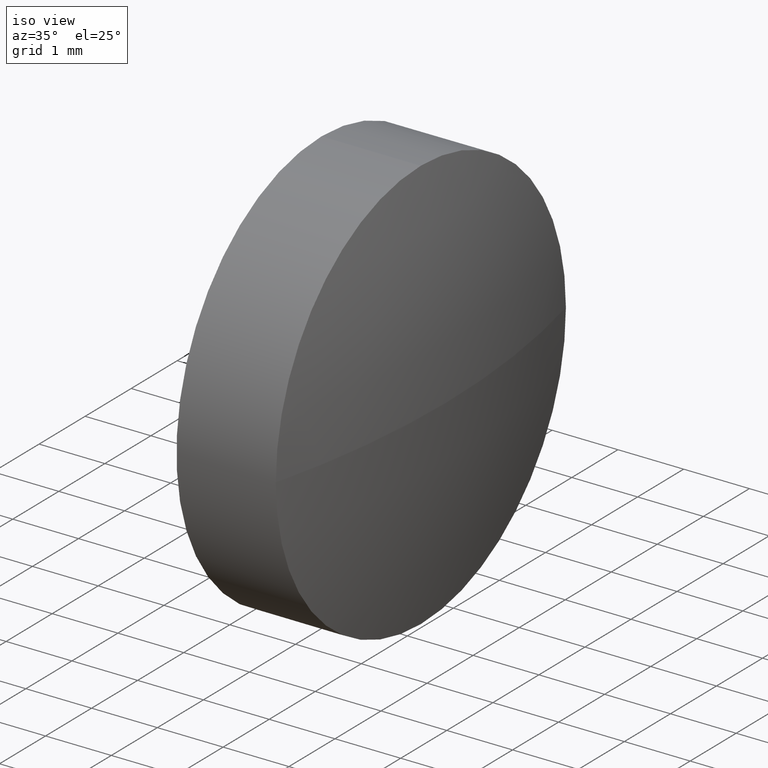
[diagram: clean part render]
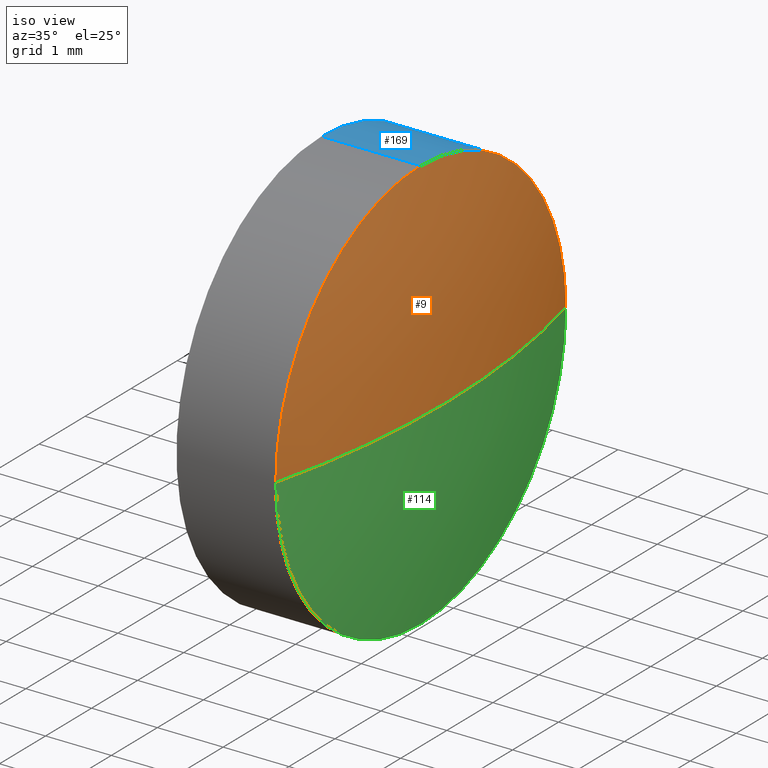
[diagram: same view with three faces highlighted in distinct colors, each labeled with its STEP entity id]
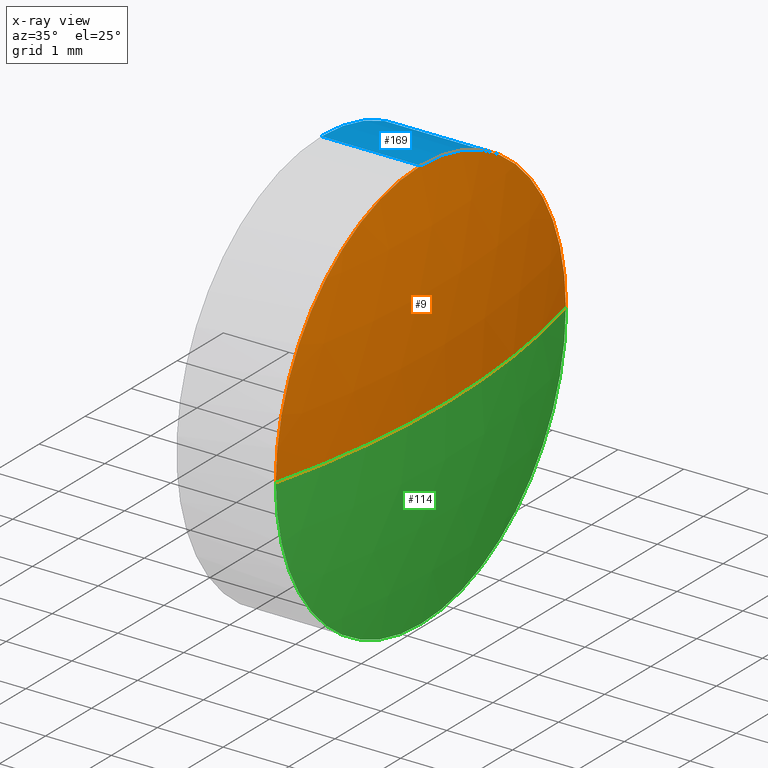
[diagram: x-ray of the same camera — body ghosted, the three highlighted faces saturated]
A machine part, iso view with three faces highlighted in distinct colors.
The next image is the same camera in x-ray (body ghosted, the three faces saturated) — at least one of them is partly hidden behind the body in this view.
Their STEP definitions:

[orange] entity #9 — the highlighted spherical surface has radius 12.9162 mm.
#1 = CARTESIAN_POINT ( 'NONE',  ( 622.5808961781638100, 229.1405012617116500, 0.0000000000000000000 ) ) ;
#2 = ORIENTED_EDGE ( 'NONE', *, *, #12, .F. ) ;
#3 = DIRECTION ( 'NONE',  ( 0.0000000000000000000, 0.0000000000000000000, 1.000000000000000000 ) ) ;
#9 = ADVANCED_FACE ( 'NONE', ( #143 ), #26, .T. ) ;
#11 = ORIENTED_EDGE ( 'NONE', *, *, #166, .F. ) ;
#12 = EDGE_CURVE ( 'NONE', #146, #70, #60, .T. ) ;
#16 = DIRECTION ( 'NONE',  ( 0.0000000000000000000, 0.0000000000000000000, 1.000000000000000000 ) ) ;
#17 = EDGE_CURVE ( 'NONE', #58, #70, #94, .T. ) ;
#18 = DIRECTION ( 'NONE',  ( -1.000000000000000000, -0.0000000000000000000, -0.0000000000000000000 ) ) ;
#26 = SPHERICAL_SURFACE ( 'NONE', #99, 12.91615384615374000 ) ;
#31 = CARTESIAN_POINT ( 'NONE',  ( 622.5808961781638100, 229.1405012617116500, 0.0000000000000000000 ) ) ;
#44 = ORIENTED_EDGE ( 'NONE', *, *, #81, .F. ) ;
#46 = VERTEX_POINT ( 'NONE', #174 ) ;
#51 = CARTESIAN_POINT ( 'NONE',  ( 635.1070500243175700, 229.1405012617116200, 3.149999999999986100 ) ) ;
#53 = DIRECTION ( 'NONE',  ( 0.0000000000000000000, 1.224646799147353200E-016, -1.000000000000000000 ) ) ;
#58 = VERTEX_POINT ( 'NONE', #62 ) ;
#60 = CIRCLE ( 'NONE', #91, 3.149999999999986100 ) ;
#62 = CARTESIAN_POINT ( 'NONE',  ( 635.4970500243175600, 229.1405012617116500, 0.0000000000000000000 ) ) ;
#70 = VERTEX_POINT ( 'NONE', #131 ) ;
#72 = DIRECTION ( 'NONE',  ( -0.0000000000000000000, 0.0000000000000000000, 1.000000000000000000 ) ) ;
#81 = EDGE_CURVE ( 'NONE', #46, #146, #111, .T. ) ;
#87 = CARTESIAN_POINT ( 'NONE',  ( 635.1070500243175700, 229.1405012617116200, 0.0000000000000000000 ) ) ;
#89 = DIRECTION ( 'NONE',  ( 1.000000000000000000, 0.0000000000000000000, 0.0000000000000000000 ) ) ;
#91 = AXIS2_PLACEMENT_3D ( 'NONE', #87, #105, #3 ) ;
#94 = CIRCLE ( 'NONE', #148, 12.91615384615374400 ) ;
#96 = CARTESIAN_POINT ( 'NONE',  ( 622.5808961781638100, 229.1405012617116500, 0.0000000000000000000 ) ) ;
#99 = AXIS2_PLACEMENT_3D ( 'NONE', #1, #172, #171 ) ;
#105 = DIRECTION ( 'NONE',  ( -1.000000000000000000, -0.0000000000000000000, -0.0000000000000000000 ) ) ;
#109 = AXIS2_PLACEMENT_3D ( 'NONE', #96, #53, #179 ) ;
#111 = CIRCLE ( 'NONE', #116, 3.149999999999986100 ) ;
#116 = AXIS2_PLACEMENT_3D ( 'NONE', #154, #18, #16 ) ;
#131 = CARTESIAN_POINT ( 'NONE',  ( 635.1070500243175700, 232.2905012617116300, 0.0000000000000000000 ) ) ;
#143 = FACE_OUTER_BOUND ( 'NONE', #150, .T. ) ;
#146 = VERTEX_POINT ( 'NONE', #51 ) ;
#148 = AXIS2_PLACEMENT_3D ( 'NONE', #31, #72, #89 ) ;
#149 = ORIENTED_EDGE ( 'NONE', *, *, #17, .T. ) ;
#150 = EDGE_LOOP ( 'NONE', ( #11, #149, #2, #44 ) ) ;
#154 = CARTESIAN_POINT ( 'NONE',  ( 635.1070500243175700, 229.1405012617116200, 0.0000000000000000000 ) ) ;
#166 = EDGE_CURVE ( 'NONE', #58, #46, #167, .T. ) ;
#167 = CIRCLE ( 'NONE', #109, 12.91615384615374400 ) ;
#171 = DIRECTION ( 'NONE',  ( 0.0000000000000000000, 1.000000000000000000, 0.0000000000000000000 ) ) ;
#172 = DIRECTION ( 'NONE',  ( -0.0000000000000000000, 0.0000000000000000000, -1.000000000000000000 ) ) ;
#174 = CARTESIAN_POINT ( 'NONE',  ( 635.1070500243175700, 225.9905012617116700, -3.857637417314171600E-016 ) ) ;
#179 = DIRECTION ( 'NONE',  ( 0.0000000000000000000, 1.000000000000000000, 1.224646799147352700E-016 ) ) ;

[blue] entity #169 — the highlighted cylindrical surface (partial cylindrical patch) has radius 3.15 mm, axis along (-1, -0, -0).
#3 = DIRECTION ( 'NONE',  ( 0.0000000000000000000, 0.0000000000000000000, 1.000000000000000000 ) ) ;
#5 = CARTESIAN_POINT ( 'NONE',  ( 611.6004701883784900, 229.1405012617116200, 0.0000000000000000000 ) ) ;
#7 = ORIENTED_EDGE ( 'NONE', *, *, #12, .T. ) ;
#12 = EDGE_CURVE ( 'NONE', #146, #70, #60, .T. ) ;
#24 = LINE ( 'NONE', #41, #126 ) ;
#25 = AXIS2_PLACEMENT_3D ( 'NONE', #5, #90, #106 ) ;
#28 = DIRECTION ( 'NONE',  ( 0.0000000000000000000, 0.0000000000000000000, 1.000000000000000000 ) ) ;
#32 = CARTESIAN_POINT ( 'NONE',  ( 633.5970500243175800, 229.1405012617116200, 0.0000000000000000000 ) ) ;
#35 = EDGE_LOOP ( 'NONE', ( #129, #107, #52, #160, #7 ) ) ;
#38 = CARTESIAN_POINT ( 'NONE',  ( 635.1070500243175700, 229.1405012617116200, -3.149999999999986100 ) ) ;
#40 = EDGE_CURVE ( 'NONE', #104, #64, #92, .T. ) ;
#41 = CARTESIAN_POINT ( 'NONE',  ( 611.6004701883784900, 229.1405012617116200, 3.149999999999986100 ) ) ;
#51 = CARTESIAN_POINT ( 'NONE',  ( 635.1070500243175700, 229.1405012617116200, 3.149999999999986100 ) ) ;
#52 = ORIENTED_EDGE ( 'NONE', *, *, #97, .F. ) ;
#60 = CIRCLE ( 'NONE', #91, 3.149999999999986100 ) ;
#63 = EDGE_CURVE ( 'NONE', #146, #182, #24, .T. ) ;
#64 = VERTEX_POINT ( 'NONE', #155 ) ;
#67 = CYLINDRICAL_SURFACE ( 'NONE', #25, 3.149999999999986100 ) ;
#69 = EDGE_CURVE ( 'NONE', #70, #104, #184, .T. ) ;
#70 = VERTEX_POINT ( 'NONE', #131 ) ;
#77 = AXIS2_PLACEMENT_3D ( 'NONE', #32, #120, #119 ) ;
#86 = CARTESIAN_POINT ( 'NONE',  ( 611.6004701883784900, 229.1405012617116200, -3.149999999999986100 ) ) ;
#87 = CARTESIAN_POINT ( 'NONE',  ( 635.1070500243175700, 229.1405012617116200, 0.0000000000000000000 ) ) ;
#90 = DIRECTION ( 'NONE',  ( -1.000000000000000000, -0.0000000000000000000, -0.0000000000000000000 ) ) ;
#91 = AXIS2_PLACEMENT_3D ( 'NONE', #87, #105, #3 ) ;
#92 = LINE ( 'NONE', #86, #177 ) ;
#97 = EDGE_CURVE ( 'NONE', #182, #64, #145, .T. ) ;
#101 = DIRECTION ( 'NONE',  ( -1.000000000000000000, -0.0000000000000000000, -0.0000000000000000000 ) ) ;
#103 = DIRECTION ( 'NONE',  ( -1.000000000000000000, -0.0000000000000000000, -0.0000000000000000000 ) ) ;
#104 = VERTEX_POINT ( 'NONE', #38 ) ;
#105 = DIRECTION ( 'NONE',  ( -1.000000000000000000, -0.0000000000000000000, -0.0000000000000000000 ) ) ;
#106 = DIRECTION ( 'NONE',  ( 0.0000000000000000000, 0.0000000000000000000, 1.000000000000000000 ) ) ;
#107 = ORIENTED_EDGE ( 'NONE', *, *, #40, .T. ) ;
#113 = AXIS2_PLACEMENT_3D ( 'NONE', #140, #101, #28 ) ;
#119 = DIRECTION ( 'NONE',  ( 0.0000000000000000000, 0.0000000000000000000, 1.000000000000000000 ) ) ;
#120 = DIRECTION ( 'NONE',  ( -1.000000000000000000, -0.0000000000000000000, -0.0000000000000000000 ) ) ;
#126 = VECTOR ( 'NONE', #133, 1000.000000000000000 ) ;
#129 = ORIENTED_EDGE ( 'NONE', *, *, #69, .T. ) ;
#131 = CARTESIAN_POINT ( 'NONE',  ( 635.1070500243175700, 232.2905012617116300, 0.0000000000000000000 ) ) ;
#133 = DIRECTION ( 'NONE',  ( -1.000000000000000000, -0.0000000000000000000, -0.0000000000000000000 ) ) ;
#140 = CARTESIAN_POINT ( 'NONE',  ( 635.1070500243175700, 229.1405012617116200, 0.0000000000000000000 ) ) ;
#145 = CIRCLE ( 'NONE', #77, 3.149999999999986100 ) ;
#146 = VERTEX_POINT ( 'NONE', #51 ) ;
#155 = CARTESIAN_POINT ( 'NONE',  ( 633.5970500243175800, 229.1405012617116200, -3.149999999999986100 ) ) ;
#160 = ORIENTED_EDGE ( 'NONE', *, *, #63, .F. ) ;
#163 = CARTESIAN_POINT ( 'NONE',  ( 633.5970500243175800, 229.1405012617116200, 3.149999999999986100 ) ) ;
#169 = ADVANCED_FACE ( 'NONE', ( #186 ), #67, .T. ) ;
#177 = VECTOR ( 'NONE', #103, 1000.000000000000000 ) ;
#182 = VERTEX_POINT ( 'NONE', #163 ) ;
#184 = CIRCLE ( 'NONE', #113, 3.149999999999986100 ) ;
#186 = FACE_OUTER_BOUND ( 'NONE', #35, .T. ) ;

[green] entity #114 — the highlighted spherical surface has radius 12.9162 mm.
#4 = DIRECTION ( 'NONE',  ( -0.0000000000000000000, 0.0000000000000000000, -1.000000000000000000 ) ) ;
#17 = EDGE_CURVE ( 'NONE', #58, #70, #94, .T. ) ;
#20 = CARTESIAN_POINT ( 'NONE',  ( 635.1070500243175700, 229.1405012617116200, 0.0000000000000000000 ) ) ;
#28 = DIRECTION ( 'NONE',  ( 0.0000000000000000000, 0.0000000000000000000, 1.000000000000000000 ) ) ;
#31 = CARTESIAN_POINT ( 'NONE',  ( 622.5808961781638100, 229.1405012617116500, 0.0000000000000000000 ) ) ;
#38 = CARTESIAN_POINT ( 'NONE',  ( 635.1070500243175700, 229.1405012617116200, -3.149999999999986100 ) ) ;
#46 = VERTEX_POINT ( 'NONE', #174 ) ;
#50 = CARTESIAN_POINT ( 'NONE',  ( 622.5808961781638100, 229.1405012617116500, 0.0000000000000000000 ) ) ;
#53 = DIRECTION ( 'NONE',  ( 0.0000000000000000000, 1.224646799147353200E-016, -1.000000000000000000 ) ) ;
#55 = ORIENTED_EDGE ( 'NONE', *, *, #17, .F. ) ;
#58 = VERTEX_POINT ( 'NONE', #62 ) ;
#61 = DIRECTION ( 'NONE',  ( 0.0000000000000000000, 1.000000000000000000, 0.0000000000000000000 ) ) ;
#62 = CARTESIAN_POINT ( 'NONE',  ( 635.4970500243175600, 229.1405012617116500, 0.0000000000000000000 ) ) ;
#68 = EDGE_LOOP ( 'NONE', ( #55, #168, #139, #180 ) ) ;
#69 = EDGE_CURVE ( 'NONE', #70, #104, #184, .T. ) ;
#70 = VERTEX_POINT ( 'NONE', #131 ) ;
#72 = DIRECTION ( 'NONE',  ( -0.0000000000000000000, 0.0000000000000000000, 1.000000000000000000 ) ) ;
#84 = AXIS2_PLACEMENT_3D ( 'NONE', #20, #108, #123 ) ;
#89 = DIRECTION ( 'NONE',  ( 1.000000000000000000, 0.0000000000000000000, 0.0000000000000000000 ) ) ;
#94 = CIRCLE ( 'NONE', #148, 12.91615384615374400 ) ;
#96 = CARTESIAN_POINT ( 'NONE',  ( 622.5808961781638100, 229.1405012617116500, 0.0000000000000000000 ) ) ;
#101 = DIRECTION ( 'NONE',  ( -1.000000000000000000, -0.0000000000000000000, -0.0000000000000000000 ) ) ;
#104 = VERTEX_POINT ( 'NONE', #38 ) ;
#108 = DIRECTION ( 'NONE',  ( -1.000000000000000000, -0.0000000000000000000, -0.0000000000000000000 ) ) ;
#109 = AXIS2_PLACEMENT_3D ( 'NONE', #96, #53, #179 ) ;
#113 = AXIS2_PLACEMENT_3D ( 'NONE', #140, #101, #28 ) ;
#114 = ADVANCED_FACE ( 'NONE', ( #118 ), #159, .T. ) ;
#118 = FACE_OUTER_BOUND ( 'NONE', #68, .T. ) ;
#122 = AXIS2_PLACEMENT_3D ( 'NONE', #50, #4, #61 ) ;
#123 = DIRECTION ( 'NONE',  ( 0.0000000000000000000, 0.0000000000000000000, 1.000000000000000000 ) ) ;
#131 = CARTESIAN_POINT ( 'NONE',  ( 635.1070500243175700, 232.2905012617116300, 0.0000000000000000000 ) ) ;
#139 = ORIENTED_EDGE ( 'NONE', *, *, #162, .F. ) ;
#140 = CARTESIAN_POINT ( 'NONE',  ( 635.1070500243175700, 229.1405012617116200, 0.0000000000000000000 ) ) ;
#148 = AXIS2_PLACEMENT_3D ( 'NONE', #31, #72, #89 ) ;
#159 = SPHERICAL_SURFACE ( 'NONE', #122, 12.91615384615374000 ) ;
#162 = EDGE_CURVE ( 'NONE', #104, #46, #173, .T. ) ;
#166 = EDGE_CURVE ( 'NONE', #58, #46, #167, .T. ) ;
#167 = CIRCLE ( 'NONE', #109, 12.91615384615374400 ) ;
#168 = ORIENTED_EDGE ( 'NONE', *, *, #166, .T. ) ;
#173 = CIRCLE ( 'NONE', #84, 3.149999999999986100 ) ;
#174 = CARTESIAN_POINT ( 'NONE',  ( 635.1070500243175700, 225.9905012617116700, -3.857637417314171600E-016 ) ) ;
#179 = DIRECTION ( 'NONE',  ( 0.0000000000000000000, 1.000000000000000000, 1.224646799147352700E-016 ) ) ;
#180 = ORIENTED_EDGE ( 'NONE', *, *, #69, .F. ) ;
#184 = CIRCLE ( 'NONE', #113, 3.149999999999986100 ) ;